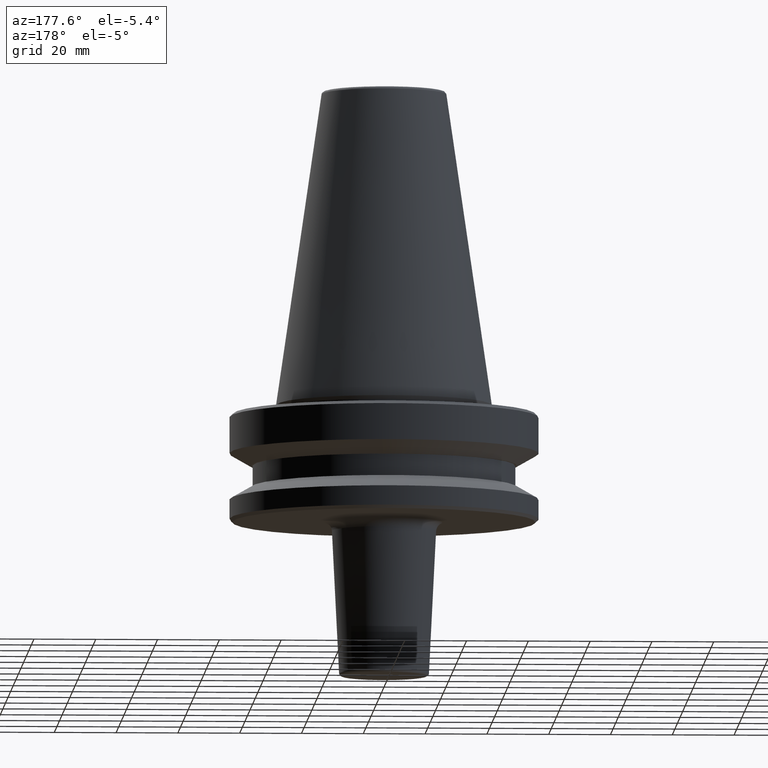
[diagram: clean part render]
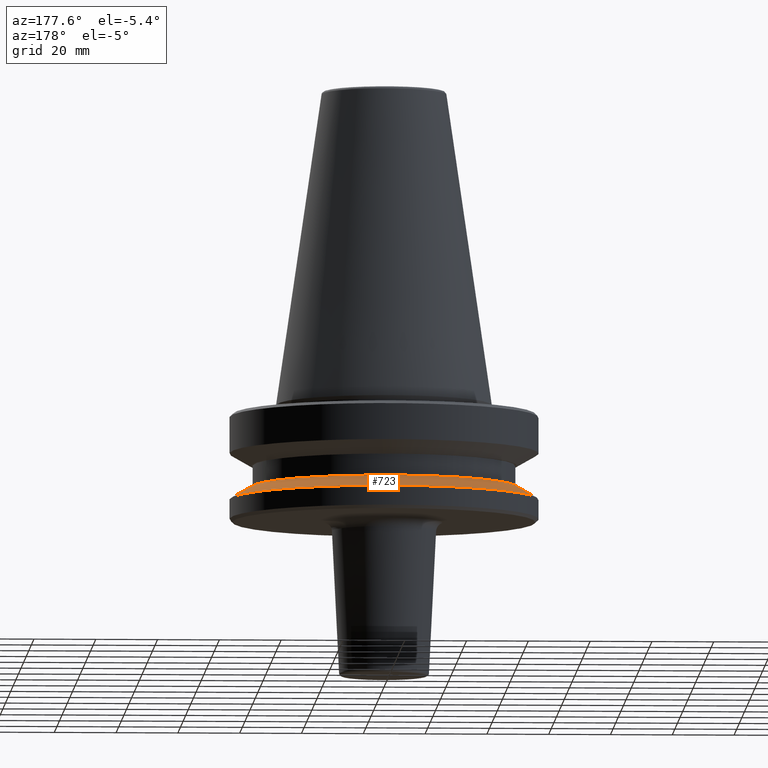
[diagram: same view with one face highlighted and labeled with its STEP entity id]
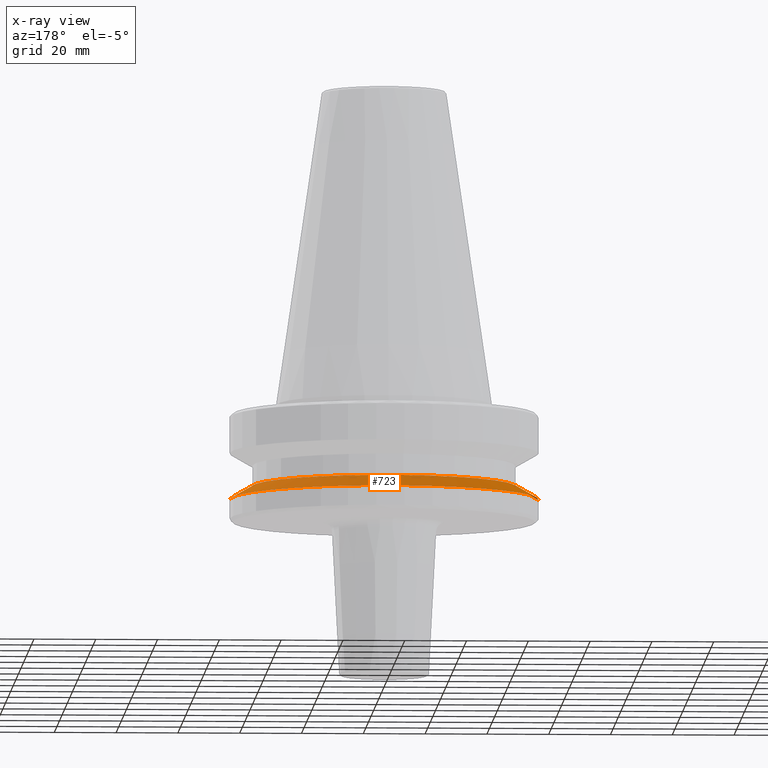
[diagram: x-ray of the same camera — body ghosted, the highlighted face saturated]
A machine part, auxiliary view. The second image highlights one B-rep face of the part: STEP entity #723.
The next image is the same camera in x-ray: the body ghosted, the highlighted face saturated — about 0% of this face is hidden behind the body in this view.
In plain terms, the highlighted conical surface has half-angle 60 deg.
Its self-contained STEP definition (entity closure, byte-faithful):
#23 = EDGE_CURVE ( 'NONE', #410, #943, #366, .T. ) ;
#33 = AXIS2_PLACEMENT_3D ( 'NONE', #270, #807, #347 ) ;
#43 = DIRECTION ( 'NONE',  ( -0.0000000000000000000, -0.0000000000000000000, 1.000000000000000000 ) ) ;
#100 = ORIENTED_EDGE ( 'NONE', *, *, #23, .F. ) ;
#143 = CARTESIAN_POINT ( 'NONE',  ( 50.00000000000000000, 6.123233995736766100E-015, -30.69977999677324500 ) ) ;
#176 = VERTEX_POINT ( 'NONE', #303 ) ;
#220 = CONICAL_SURFACE ( 'NONE', #309, 50.00000000000000000, 1.047197551196597200 ) ;
#253 = LINE ( 'NONE', #143, #446 ) ;
#270 = CARTESIAN_POINT ( 'NONE',  ( 0.0000000000000000000, 0.0000000000000000000, -30.69977999677324500 ) ) ;
#303 = CARTESIAN_POINT ( 'NONE',  ( 43.07217782649105000, 5.699027233244276800E-015, -26.69999999999998900 ) ) ;
#309 = AXIS2_PLACEMENT_3D ( 'NONE', #375, #836, #685 ) ;
#325 = AXIS2_PLACEMENT_3D ( 'NONE', #509, #43, #583 ) ;
#347 = DIRECTION ( 'NONE',  ( 1.000000000000000000, 0.0000000000000000000, 0.0000000000000000000 ) ) ;
#366 = LINE ( 'NONE', #938, #594 ) ;
#375 = CARTESIAN_POINT ( 'NONE',  ( 0.0000000000000000000, 0.0000000000000000000, -30.69977999677324500 ) ) ;
#396 = DIRECTION ( 'NONE',  ( -0.8660254037844383700, 0.0000000000000000000, -0.5000000000000004400 ) ) ;
#410 = VERTEX_POINT ( 'NONE', #550 ) ;
#411 = EDGE_CURVE ( 'NONE', #176, #410, #635, .T. ) ;
#445 = ORIENTED_EDGE ( 'NONE', *, *, #411, .F. ) ;
#446 = VECTOR ( 'NONE', #677, 1000.000000000000000 ) ;
#502 = FACE_OUTER_BOUND ( 'NONE', #720, .T. ) ;
#509 = CARTESIAN_POINT ( 'NONE',  ( 0.0000000000000000000, 0.0000000000000000000, -26.69999999999998900 ) ) ;
#514 = ORIENTED_EDGE ( 'NONE', *, *, #715, .T. ) ;
#550 = CARTESIAN_POINT ( 'NONE',  ( -43.07217782649105000, 0.0000000000000000000, -26.69999999999998900 ) ) ;
#560 = CARTESIAN_POINT ( 'NONE',  ( -50.00000000000000000, 6.123233995736766100E-015, -30.69977999677324500 ) ) ;
#583 = DIRECTION ( 'NONE',  ( 1.000000000000000000, 0.0000000000000000000, 0.0000000000000000000 ) ) ;
#594 = VECTOR ( 'NONE', #396, 1000.000000000000000 ) ;
#613 = CARTESIAN_POINT ( 'NONE',  ( 50.00000000000000000, 0.0000000000000000000, -30.69977999677324500 ) ) ;
#635 = CIRCLE ( 'NONE', #325, 43.07217782649105000 ) ;
#677 = DIRECTION ( 'NONE',  ( 0.8660254037844383700, 1.060575238724906500E-016, -0.5000000000000004400 ) ) ;
#685 = DIRECTION ( 'NONE',  ( -1.000000000000000000, 0.0000000000000000000, 0.0000000000000000000 ) ) ;
#715 = EDGE_CURVE ( 'NONE', #176, #789, #253, .T. ) ;
#720 = EDGE_LOOP ( 'NONE', ( #445, #514, #749, #100 ) ) ;
#723 = ADVANCED_FACE ( 'NONE', ( #502 ), #220, .T. ) ;
#749 = ORIENTED_EDGE ( 'NONE', *, *, #867, .T. ) ;
#789 = VERTEX_POINT ( 'NONE', #613 ) ;
#807 = DIRECTION ( 'NONE',  ( -0.0000000000000000000, -0.0000000000000000000, 1.000000000000000000 ) ) ;
#836 = DIRECTION ( 'NONE',  ( 0.0000000000000000000, 0.0000000000000000000, -1.000000000000000000 ) ) ;
#867 = EDGE_CURVE ( 'NONE', #789, #943, #870, .T. ) ;
#870 = CIRCLE ( 'NONE', #33, 50.00000000000000000 ) ;
#938 = CARTESIAN_POINT ( 'NONE',  ( -50.00000000000000000, 0.0000000000000000000, -30.69977999677324500 ) ) ;
#943 = VERTEX_POINT ( 'NONE', #560 ) ;